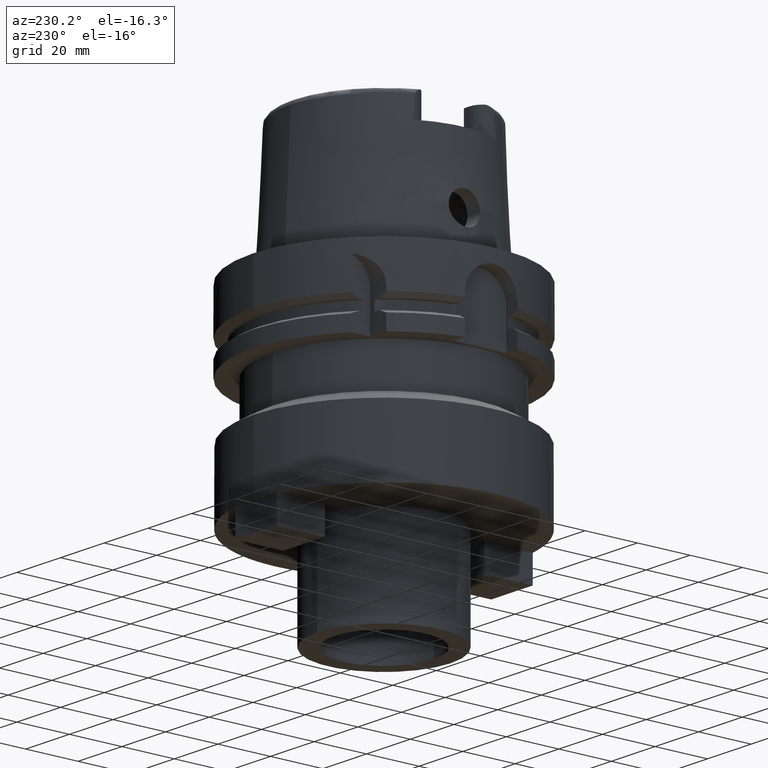
[diagram: clean part render]
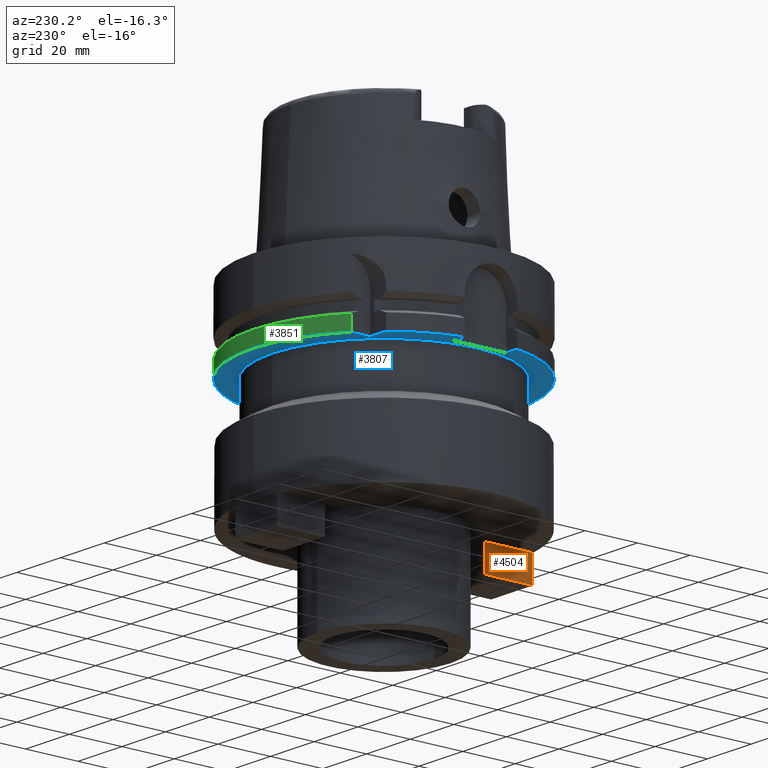
[diagram: same view with three faces highlighted in distinct colors, each labeled with its STEP entity id]
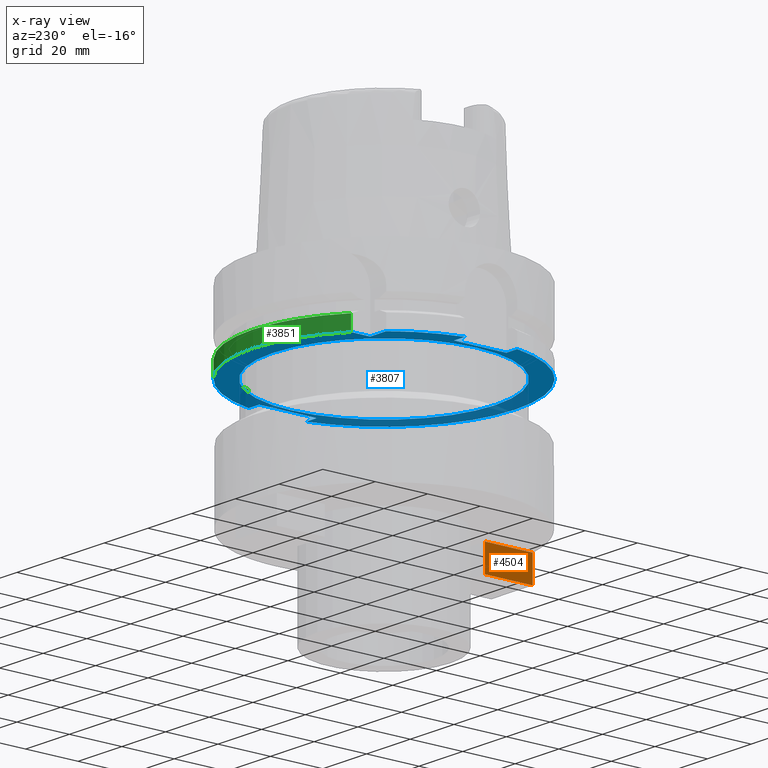
[diagram: x-ray of the same camera — body ghosted, the three highlighted faces saturated]
A machine part, auxiliary view with three faces highlighted in distinct colors.
The next image is the same camera in x-ray (body ghosted, the three faces saturated) — at least one of them is partly hidden behind the body in this view.
Their STEP definitions:

[orange] entity #4504 — the highlighted planar face has unit normal (-1, 0, 0).
#2289=DIRECTION('',(0.E0,-1.E0,0.E0));
#2290=VECTOR('',#2289,1.83E1);
#2291=CARTESIAN_POINT('',(-9.525E0,-3.05E1,-7.5E1));
#2292=LINE('',#2291,#2290);
#2296=DIRECTION('',(0.E0,0.E0,-1.E0));
#2297=VECTOR('',#2296,1.E1);
#2298=CARTESIAN_POINT('',(-9.525E0,-4.88E1,-7.5E1));
#2299=LINE('',#2298,#2297);
#2303=DIRECTION('',(0.E0,1.E0,0.E0));
#2304=VECTOR('',#2303,1.83E1);
#2305=CARTESIAN_POINT('',(-9.525E0,-4.88E1,-8.5E1));
#2306=LINE('',#2305,#2304);
#2310=DIRECTION('',(0.E0,0.E0,1.E0));
#2311=VECTOR('',#2310,1.E1);
#2312=CARTESIAN_POINT('',(-9.525E0,-3.05E1,-8.5E1));
#2313=LINE('',#2312,#2311);
#2642=CARTESIAN_POINT('',(-9.525E0,-4.88E1,-7.5E1));
#2643=VERTEX_POINT('',#2642);
#2644=CARTESIAN_POINT('',(-9.525E0,-3.05E1,-7.5E1));
#2645=VERTEX_POINT('',#2644);
#2818=CARTESIAN_POINT('',(-9.525E0,-3.05E1,-8.5E1));
#2819=VERTEX_POINT('',#2818);
#2820=CARTESIAN_POINT('',(-9.525E0,-4.88E1,-8.5E1));
#2821=VERTEX_POINT('',#2820);
#4491=CARTESIAN_POINT('',(-9.525E0,2.014980599662E-14,0.E0));
#4492=DIRECTION('',(-1.E0,0.E0,0.E0));
#4493=DIRECTION('',(0.E0,0.E0,1.E0));
#4494=AXIS2_PLACEMENT_3D('',#4491,#4492,#4493);
#4495=PLANE('',#4494);
#4496=ORIENTED_EDGE('',*,*,#3679,.T.);
#4498=ORIENTED_EDGE('',*,*,#4497,.T.);
#4500=ORIENTED_EDGE('',*,*,#4499,.T.);
#4501=ORIENTED_EDGE('',*,*,#4483,.T.);
#4502=EDGE_LOOP('',(#4496,#4498,#4500,#4501));
#4503=FACE_OUTER_BOUND('',#4502,.F.);
#3679=EDGE_CURVE('',#2645,#2643,#2292,.T.);
#4483=EDGE_CURVE('',#2819,#2645,#2313,.T.);
#4497=EDGE_CURVE('',#2643,#2821,#2299,.T.);
#4499=EDGE_CURVE('',#2821,#2819,#2306,.T.);
#4504=ADVANCED_FACE('',(#4503),#4495,.T.);

[blue] entity #3807 — the highlighted planar face has unit normal (0, 0, -1).
#1269=DIRECTION('',(-1.E0,-4.798503851106E-14,0.E0));
#1270=VECTOR('',#1269,7.329756630709E0);
#1271=CARTESIAN_POINT('',(-3.15E1,3.15E1,-2.9E1));
#1272=LINE('',#1271,#1270);
#1276=CARTESIAN_POINT('',(0.E0,1.935554266052E-14,-2.9E1));
#1277=DIRECTION('',(0.E0,0.E0,1.E0));
#1278=DIRECTION('',(-7.765951326142E-1,6.3E-1,0.E0));
#1279=AXIS2_PLACEMENT_3D('',#1276,#1277,#1278);
#1284=DIRECTION('',(-1.E0,-4.627973610177E-14,0.E0));
#1285=VECTOR('',#1284,4.989794855662E0);
#1286=CARTESIAN_POINT('',(-4.4E1,-1.E1,-2.9E1));
#1287=LINE('',#1286,#1285);
#1291=CARTESIAN_POINT('',(0.E0,1.935554266052E-14,-2.9E1));
#1292=DIRECTION('',(0.E0,0.E0,1.E0));
#1293=DIRECTION('',(-9.797958971133E-1,-2.E-1,0.E0));
#1294=AXIS2_PLACEMENT_3D('',#1291,#1292,#1293);
#1299=CARTESIAN_POINT('',(0.E0,1.935554266052E-14,-2.9E1));
#1300=DIRECTION('',(0.E0,0.E0,1.E0));
#1301=DIRECTION('',(0.E0,-1.E0,0.E0));
#1302=AXIS2_PLACEMENT_3D('',#1299,#1300,#1301);
#1307=DIRECTION('',(-1.E0,-1.897263253749E-14,0.E0));
#1308=VECTOR('',#1307,4.774993593029E0);
#1309=CARTESIAN_POINT('',(4.877499359303E1,-1.1E1,-2.9E1));
#1310=LINE('',#1309,#1308);
#1314=CARTESIAN_POINT('',(0.E0,1.935554266052E-14,-2.9E1));
#1315=DIRECTION('',(0.E0,0.E0,1.E0));
#1316=DIRECTION('',(9.754998718606E-1,2.2E-1,0.E0));
#1317=AXIS2_PLACEMENT_3D('',#1314,#1315,#1316);
#1322=CARTESIAN_POINT('',(0.E0,1.935554266052E-14,-2.9E1));
#1323=DIRECTION('',(0.E0,0.E0,1.E0));
#1324=DIRECTION('',(0.E0,1.E0,0.E0));
#1325=AXIS2_PLACEMENT_3D('',#1322,#1323,#1324);
#1330=CARTESIAN_POINT('',(0.E0,1.935554266052E-14,-2.9E1));
#1331=DIRECTION('',(0.E0,0.E0,-1.E0));
#1332=DIRECTION('',(0.E0,-1.E0,0.E0));
#1333=AXIS2_PLACEMENT_3D('',#1330,#1331,#1332);
#1338=CARTESIAN_POINT('',(0.E0,1.935554266052E-14,-2.9E1));
#1339=DIRECTION('',(0.E0,0.E0,-1.E0));
#1340=DIRECTION('',(0.E0,1.E0,0.E0));
#1341=AXIS2_PLACEMENT_3D('',#1338,#1339,#1340);
#1346=DIRECTION('',(4.798503851106E-14,1.E0,0.E0));
#1347=VECTOR('',#1346,7.329756630709E0);
#1348=CARTESIAN_POINT('',(-3.15E1,3.15E1,-2.9E1));
#1349=LINE('',#1348,#1347);
#1392=DIRECTION('',(-1.E0,1.897263253749E-14,0.E0));
#1393=VECTOR('',#1392,4.774993593029E0);
#1394=CARTESIAN_POINT('',(4.877499359303E1,1.1E1,-2.9E1));
#1395=LINE('',#1394,#1393);
#1406=DIRECTION('',(0.E0,-1.E0,0.E0));
#1407=VECTOR('',#1406,2.2E1);
#1408=CARTESIAN_POINT('',(4.4E1,1.1E1,-2.9E1));
#1409=LINE('',#1408,#1407);
#1485=DIRECTION('',(0.E0,1.E0,0.E0));
#1486=VECTOR('',#1485,2.E1);
#1487=CARTESIAN_POINT('',(-4.4E1,-1.E1,-2.9E1));
#1488=LINE('',#1487,#1486);
#1508=DIRECTION('',(-1.E0,4.627973610177E-14,0.E0));
#1509=VECTOR('',#1508,4.989794855662E0);
#1510=CARTESIAN_POINT('',(-4.4E1,1.E1,-2.9E1));
#1511=LINE('',#1510,#1509);
#2654=CARTESIAN_POINT('',(0.E0,4.25E1,-2.9E1));
#2655=VERTEX_POINT('',#2654);
#2656=CARTESIAN_POINT('',(0.E0,-4.25E1,-2.9E1));
#2657=VERTEX_POINT('',#2656);
#2658=CARTESIAN_POINT('',(-3.15E1,3.15E1,-2.9E1));
#2659=CARTESIAN_POINT('',(-3.15E1,3.882975663071E1,-2.9E1));
#2660=VERTEX_POINT('',#2658);
#2661=VERTEX_POINT('',#2659);
#2662=CARTESIAN_POINT('',(-3.882975663071E1,3.15E1,-2.9E1));
#2663=VERTEX_POINT('',#2662);
#2664=CARTESIAN_POINT('',(-4.898979485566E1,1.E1,-2.9E1));
#2665=VERTEX_POINT('',#2664);
#2666=CARTESIAN_POINT('',(-4.4E1,1.E1,-2.9E1));
#2667=VERTEX_POINT('',#2666);
#2668=CARTESIAN_POINT('',(-4.4E1,-1.E1,-2.9E1));
#2669=VERTEX_POINT('',#2668);
#2670=CARTESIAN_POINT('',(-4.898979485566E1,-1.E1,-2.9E1));
#2671=VERTEX_POINT('',#2670);
#2672=CARTESIAN_POINT('',(-3.624306980271E-14,-5.E1,-2.9E1));
#2673=CARTESIAN_POINT('',(4.877499359303E1,-1.1E1,-2.9E1));
#2674=VERTEX_POINT('',#2672);
#2675=VERTEX_POINT('',#2673);
#2676=CARTESIAN_POINT('',(4.4E1,-1.1E1,-2.9E1));
#2677=VERTEX_POINT('',#2676);
#2678=CARTESIAN_POINT('',(4.4E1,1.1E1,-2.9E1));
#2679=VERTEX_POINT('',#2678);
#2680=CARTESIAN_POINT('',(4.877499359303E1,1.1E1,-2.9E1));
#2681=VERTEX_POINT('',#2680);
#2682=CARTESIAN_POINT('',(-6.019535474874E-14,5.E1,-2.9E1));
#2683=VERTEX_POINT('',#2682);
#3770=CARTESIAN_POINT('',(0.E0,0.E0,-2.9E1));
#3771=DIRECTION('',(0.E0,0.E0,-1.E0));
#3772=DIRECTION('',(0.E0,-1.E0,0.E0));
#3773=AXIS2_PLACEMENT_3D('',#3770,#3771,#3772);
#3774=PLANE('',#3773);
#3776=ORIENTED_EDGE('',*,*,#3775,.F.);
#3778=ORIENTED_EDGE('',*,*,#3777,.T.);
#3780=ORIENTED_EDGE('',*,*,#3779,.T.);
#3782=ORIENTED_EDGE('',*,*,#3781,.F.);
#3784=ORIENTED_EDGE('',*,*,#3783,.F.);
#3786=ORIENTED_EDGE('',*,*,#3785,.T.);
#3788=ORIENTED_EDGE('',*,*,#3787,.T.);
#3790=ORIENTED_EDGE('',*,*,#3789,.T.);
#3792=ORIENTED_EDGE('',*,*,#3791,.T.);
#3794=ORIENTED_EDGE('',*,*,#3793,.F.);
#3796=ORIENTED_EDGE('',*,*,#3795,.F.);
#3798=ORIENTED_EDGE('',*,*,#3797,.T.);
#3800=ORIENTED_EDGE('',*,*,#3799,.T.);
#3801=EDGE_LOOP('',(#3776,#3778,#3780,#3782,#3784,#3786,#3788,#3790,#3792,#3794,
#3796,#3798,#3800));
#3802=FACE_OUTER_BOUND('',#3801,.F.);
#3803=ORIENTED_EDGE('',*,*,#3763,.T.);
#3804=ORIENTED_EDGE('',*,*,#3752,.T.);
#3805=EDGE_LOOP('',(#3803,#3804));
#3806=FACE_BOUND('',#3805,.F.);
#1280=CIRCLE('',#1279,5.E1);
#1295=CIRCLE('',#1294,5.E1);
#1303=CIRCLE('',#1302,5.E1);
#1318=CIRCLE('',#1317,5.E1);
#1326=CIRCLE('',#1325,5.E1);
#1334=CIRCLE('',#1333,4.25E1);
#1342=CIRCLE('',#1341,4.25E1);
#3752=EDGE_CURVE('',#2655,#2657,#1342,.T.);
#3763=EDGE_CURVE('',#2657,#2655,#1334,.T.);
#3775=EDGE_CURVE('',#2660,#2661,#1349,.T.);
#3777=EDGE_CURVE('',#2660,#2663,#1272,.T.);
#3779=EDGE_CURVE('',#2663,#2665,#1280,.T.);
#3781=EDGE_CURVE('',#2667,#2665,#1511,.T.);
#3783=EDGE_CURVE('',#2669,#2667,#1488,.T.);
#3785=EDGE_CURVE('',#2669,#2671,#1287,.T.);
#3787=EDGE_CURVE('',#2671,#2674,#1295,.T.);
#3789=EDGE_CURVE('',#2674,#2675,#1303,.T.);
#3791=EDGE_CURVE('',#2675,#2677,#1310,.T.);
#3793=EDGE_CURVE('',#2679,#2677,#1409,.T.);
#3795=EDGE_CURVE('',#2681,#2679,#1395,.T.);
#3797=EDGE_CURVE('',#2681,#2683,#1318,.T.);
#3799=EDGE_CURVE('',#2683,#2661,#1326,.T.);
#3807=ADVANCED_FACE('',(#3802,#3806),#3774,.T.);

[green] entity #3851 — the highlighted cylindrical surface (partial cylindrical patch) has radius 50 mm, axis along (0, 0, -1).
#1314=CARTESIAN_POINT('',(0.E0,1.935554266052E-14,-2.9E1));
#1315=DIRECTION('',(0.E0,0.E0,1.E0));
#1316=DIRECTION('',(9.754998718606E-1,2.2E-1,0.E0));
#1317=AXIS2_PLACEMENT_3D('',#1314,#1315,#1316);
#1322=CARTESIAN_POINT('',(0.E0,1.935554266052E-14,-2.9E1));
#1323=DIRECTION('',(0.E0,0.E0,1.E0));
#1324=DIRECTION('',(0.E0,1.E0,0.E0));
#1325=AXIS2_PLACEMENT_3D('',#1322,#1323,#1324);
#1378=DIRECTION('',(-1.434806506617E-7,-1.163961879862E-7,-1.E0));
#1379=VECTOR('',#1378,5.752407737037E0);
#1380=CARTESIAN_POINT('',(-3.149999917464E1,3.882975730027E1,
-2.324759226296E1));
#1381=LINE('',#1380,#1379);
#1385=DIRECTION('',(-8.152385430781E-14,-2.007216109851E-14,1.E0));
#1386=VECTOR('',#1385,5.752404735809E0);
#1387=CARTESIAN_POINT('',(4.877499359303E1,1.1E1,-2.9E1));
#1388=LINE('',#1387,#1386);
#1757=CARTESIAN_POINT('',(0.E0,0.E0,-2.324759526419E1));
#1758=DIRECTION('',(0.E0,0.E0,-1.E0));
#1759=DIRECTION('',(-6.3E-1,7.765951326142E-1,0.E0));
#1760=AXIS2_PLACEMENT_3D('',#1757,#1758,#1759);
#1765=CARTESIAN_POINT('',(0.E0,0.E0,-2.324759526419E1));
#1766=DIRECTION('',(0.E0,0.E0,-1.E0));
#1767=DIRECTION('',(0.E0,1.E0,0.E0));
#1768=AXIS2_PLACEMENT_3D('',#1765,#1766,#1767);
#2659=CARTESIAN_POINT('',(-3.15E1,3.882975663071E1,-2.9E1));
#2661=VERTEX_POINT('',#2659);
#2680=CARTESIAN_POINT('',(4.877499359303E1,1.1E1,-2.9E1));
#2681=VERTEX_POINT('',#2680);
#2682=CARTESIAN_POINT('',(-6.019535474874E-14,5.E1,-2.9E1));
#2683=VERTEX_POINT('',#2682);
#2684=CARTESIAN_POINT('',(-3.149999917464E1,3.882975730027E1,
-2.324759226296E1));
#2685=VERTEX_POINT('',#2684);
#2704=CARTESIAN_POINT('',(4.877499359303E1,1.1E1,-2.324759526419E1));
#2705=VERTEX_POINT('',#2704);
#2706=CARTESIAN_POINT('',(-1.065814103640E-14,5.E1,-2.324759526419E1));
#2707=VERTEX_POINT('',#2706);
#3835=CARTESIAN_POINT('',(0.E0,1.935554266052E-14,5.805E1));
#3836=DIRECTION('',(0.E0,0.E0,-1.E0));
#3837=DIRECTION('',(0.E0,-1.E0,0.E0));
#3838=AXIS2_PLACEMENT_3D('',#3835,#3836,#3837);
#3839=CYLINDRICAL_SURFACE('',#3838,5.E1);
#3840=ORIENTED_EDGE('',*,*,#3814,.T.);
#3841=ORIENTED_EDGE('',*,*,#3799,.F.);
#3842=ORIENTED_EDGE('',*,*,#3797,.F.);
#3844=ORIENTED_EDGE('',*,*,#3843,.T.);
#3846=ORIENTED_EDGE('',*,*,#3845,.F.);
#3848=ORIENTED_EDGE('',*,*,#3847,.F.);
#3849=EDGE_LOOP('',(#3840,#3841,#3842,#3844,#3846,#3848));
#3850=FACE_OUTER_BOUND('',#3849,.F.);
#1318=CIRCLE('',#1317,5.E1);
#1326=CIRCLE('',#1325,5.E1);
#1761=CIRCLE('',#1760,5.E1);
#1769=CIRCLE('',#1768,5.E1);
#3797=EDGE_CURVE('',#2681,#2683,#1318,.T.);
#3799=EDGE_CURVE('',#2683,#2661,#1326,.T.);
#3814=EDGE_CURVE('',#2685,#2661,#1381,.T.);
#3843=EDGE_CURVE('',#2681,#2705,#1388,.T.);
#3845=EDGE_CURVE('',#2707,#2705,#1769,.T.);
#3847=EDGE_CURVE('',#2685,#2707,#1761,.T.);
#3851=ADVANCED_FACE('',(#3850),#3839,.T.);